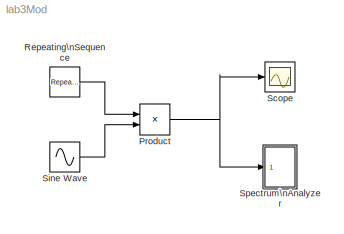
MODEL lab3Mod
KIND model
BLOCK [Product] Product
  InputSameDT = on
  OutDataTypeStr = Inherit: Same as first input
  Ports = [2, 1]
  RndMeth = Zero
  SID = 1
  SaturateOnIntegerOverflow = on
BLOCK [Reference] Repeating\nSequence  REF=simulink/Sources/Repeating\nSequence
  Ports = [0, 1]
  RTWMemSecDataConstants = Inherit from model
  RTWMemSecDataInternal = Inherit from model
  RTWMemSecDataParameters = Inherit from model
  RTWMemSecFuncExecute = Inherit from model
  RTWMemSecFuncInitTerm = Inherit from model
  SID = 2
  SourceBlock = simulink/Sources/Repeating\nSequence
  SourceProductBaseCode = SL
  SourceType = Repeating table
  rep_seq_t = [0 0.5 1 3]
  rep_seq_y = [0 1 0 0]
BLOCK [Scope] Scope
  Floating = off
  NumInputPorts = 1
  Ports = [1]
  SID = 3
  ScopeSpecificationString = Simulink.scopes.TimeScopeBlockCfg('CurrentConfiguration', extmgr.ConfigurationSet(extmgr.Configuration('Core','General UI',true),extmgr.Configuration('Core','Source UI',true),extmgr.Configuration('Sources','WiredSimulink',true,'DataLoggingSaveFormat','Array','DataLoggingLimitDataPoints',true,'DataLoggingDecimation','1','DataLoggingDecimateData',true),extmgr.Configuration('Visuals','Time Domain',tr...<+1680ch>
BLOCK [Sin] Sine Wave
  Frequency = 2*pi*10
  Ports = [0, 1]
  SID = 4
  SampleTime = 0
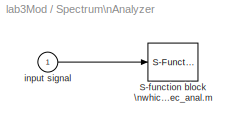
BLOCK [SubSystem] Spectrum\nAnalyzer
  Ports = [1]
  RequestExecContextInheritance = off
  SID = 5
  ShowPortLabels = none
BLOCK [S-Function] Spectrum\nAnalyzer/S-function block \nwhich spec_anal.m
  EnableBusSupport = off
  FunctionName = SpecAnal
  Parameters = N,T_s,plot_period
  Ports = [1]
  SFcnIsStateOwnerBlock = off
  SFunctionDeploymentMode = off
  SID = 7
BLOCK [Inport] Spectrum\nAnalyzer/input signal
  SID = 6
NET Product:1 -> Scope:1, Spectrum\nAnalyzer:1
LINE Repeating\nSequence:1 -> Product:1
LINE Sine Wave:1 -> Product:2
LINE Spectrum\nAnalyzer/input signal:1 -> Spectrum\nAnalyzer/S-function block \nwhich spec_anal.m:1
note: NET lines group one-source signal fan-out (src -> all destinations, sorted); 1:1 wires keep LINE
